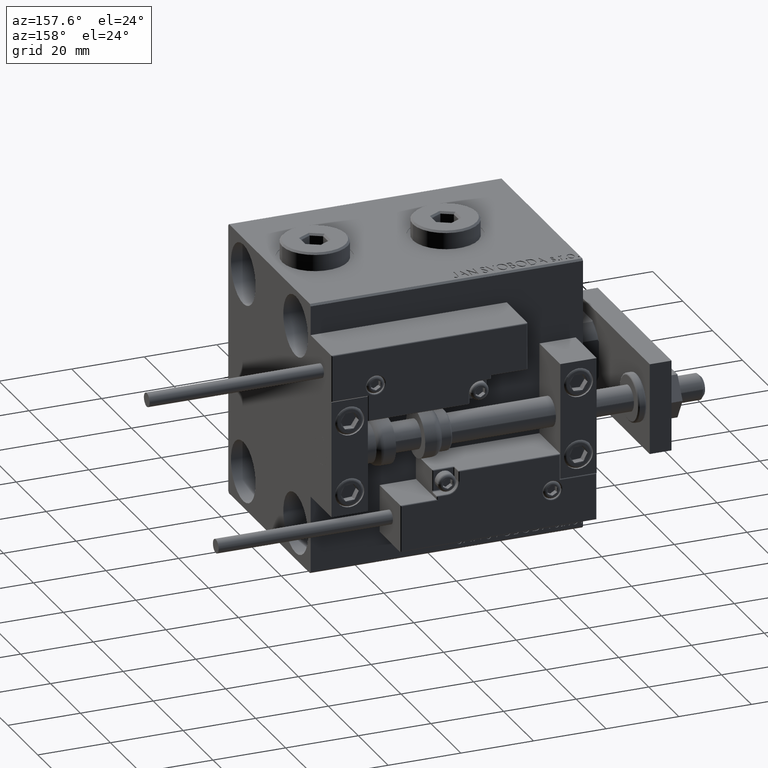
[diagram: clean part render]
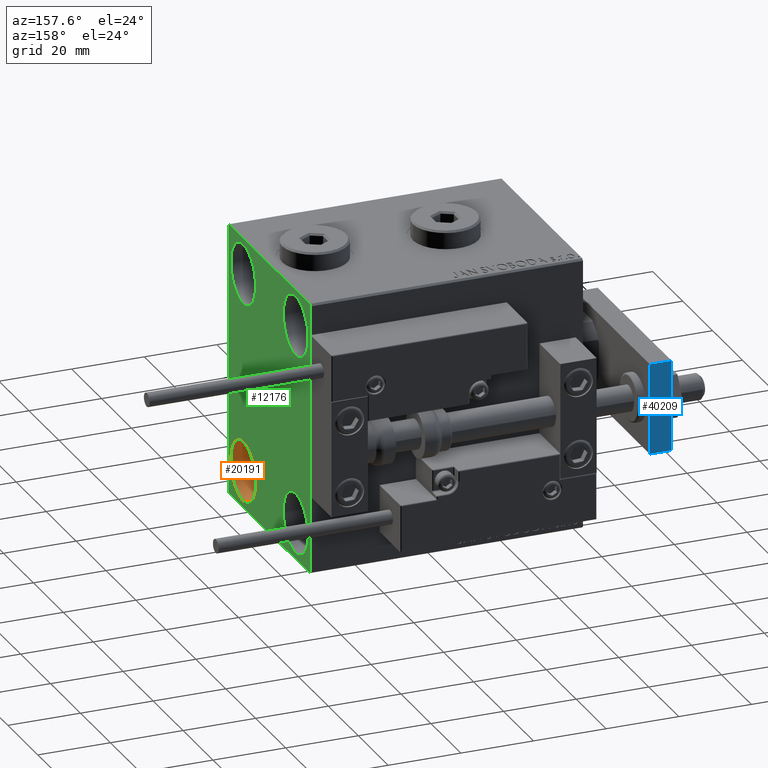
[diagram: same view with three faces highlighted in distinct colors, each labeled with its STEP entity id]
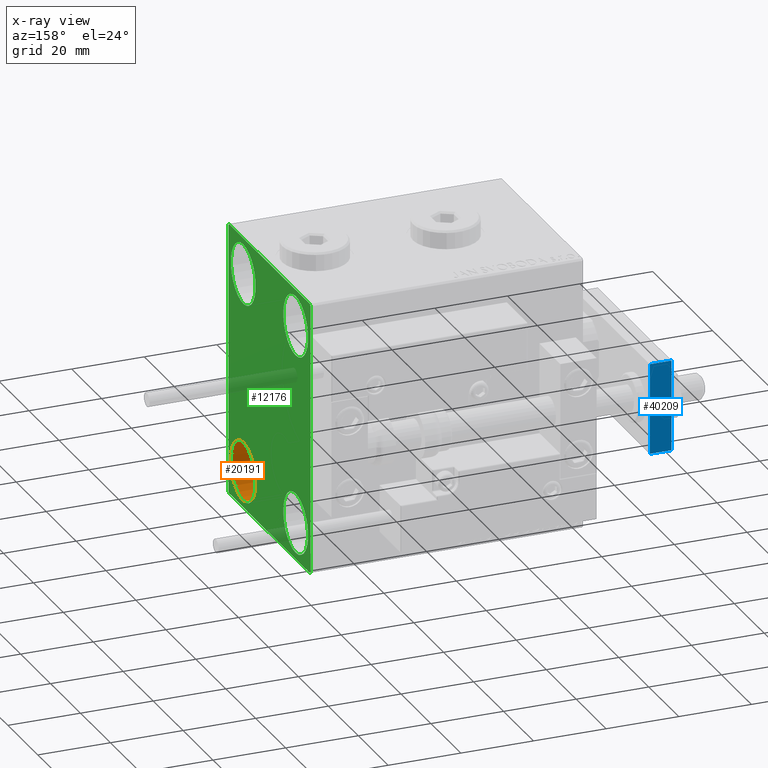
[diagram: x-ray of the same camera — body ghosted, the three highlighted faces saturated]
A machine part, auxiliary view with three faces highlighted in distinct colors.
The next image is the same camera in x-ray (body ghosted, the three faces saturated) — at least one of them is partly hidden behind the body in this view.
Their STEP definitions:

[orange] entity #20191 — the highlighted cylindrical surface (edge-blend (fillet) strip) has radius 8.25 mm, axis along (1, 0, 0).
#812 = CARTESIAN_POINT ( 'NONE',  ( 64.00000000000000000, -17.50000000000000355, -19.25000000000000355 ) ) ;
#3459 = DIRECTION ( 'NONE',  ( -1.000000000000000000, -0.000000000000000000, -0.000000000000000000 ) ) ;
#3655 = DIRECTION ( 'NONE',  ( -1.000000000000000000, -0.000000000000000000, -0.000000000000000000 ) ) ;
#3774 = EDGE_CURVE ( 'NONE', #31535, #14842, #48895, .T. ) ;
#3995 = ORIENTED_EDGE ( 'NONE', *, *, #29127, .F. ) ;
#4964 = DIRECTION ( 'NONE',  ( 1.000000000000000000, -0.000000000000000000, -0.000000000000000000 ) ) ;
#5104 = CARTESIAN_POINT ( 'NONE',  ( 64.00000000000000000, -17.50000000000000355, -19.25000000000000355 ) ) ;
#5338 = AXIS2_PLACEMENT_3D ( 'NONE', #26177, #3459, #10266 ) ;
#10103 = CARTESIAN_POINT ( 'NONE',  ( 64.00000000000000000, -17.50000000000000355, -35.75000000000000711 ) ) ;
#10266 = DIRECTION ( 'NONE',  ( 0.000000000000000000, 0.000000000000000000, 1.000000000000000000 ) ) ;
#11520 = EDGE_CURVE ( 'NONE', #21083, #31535, #49956, .T. ) ;
#14842 = VERTEX_POINT ( 'NONE', #30411 ) ;
#15314 = CIRCLE ( 'NONE', #5338, 8.250000000000000000 ) ;
#15823 = AXIS2_PLACEMENT_3D ( 'NONE', #39615, #3655, #35968 ) ;
#18643 = AXIS2_PLACEMENT_3D ( 'NONE', #37423, #41845, #29583 ) ;
#20191 = ADVANCED_FACE ( 'NONE', ( #25944 ), #25679, .F. ) ;
#21083 = VERTEX_POINT ( 'NONE', #10103 ) ;
#22542 = ORIENTED_EDGE ( 'NONE', *, *, #11520, .T. ) ;
#25323 = CARTESIAN_POINT ( 'NONE',  ( 75.00000000000000000, -17.50000000000000355, -35.75000000000000711 ) ) ;
#25679 = CYLINDRICAL_SURFACE ( 'NONE', #18643, 8.250000000000000000 ) ;
#25944 = FACE_OUTER_BOUND ( 'NONE', #32396, .T. ) ;
#26177 = CARTESIAN_POINT ( 'NONE',  ( 75.00000000000000000, -17.50000000000000355, -27.50000000000000355 ) ) ;
#29127 = EDGE_CURVE ( 'NONE', #39672, #14842, #15314, .T. ) ;
#29583 = DIRECTION ( 'NONE',  ( 0.000000000000000000, 0.000000000000000000, -1.000000000000000000 ) ) ;
#30411 = CARTESIAN_POINT ( 'NONE',  ( 75.00000000000000000, -17.50000000000000355, -19.25000000000000355 ) ) ;
#31535 = VERTEX_POINT ( 'NONE', #812 ) ;
#31595 = EDGE_CURVE ( 'NONE', #21083, #39672, #43813, .T. ) ;
#32396 = EDGE_LOOP ( 'NONE', ( #22542, #38473, #3995, #49179 ) ) ;
#35667 = VECTOR ( 'NONE', #36916, 1000.000000000000000 ) ;
#35968 = DIRECTION ( 'NONE',  ( 0.000000000000000000, 0.000000000000000000, 1.000000000000000000 ) ) ;
#36916 = DIRECTION ( 'NONE',  ( 1.000000000000000000, -0.000000000000000000, -0.000000000000000000 ) ) ;
#37423 = CARTESIAN_POINT ( 'NONE',  ( 64.00000000000000000, -17.50000000000000355, -27.50000000000000355 ) ) ;
#38473 = ORIENTED_EDGE ( 'NONE', *, *, #3774, .T. ) ;
#39615 = CARTESIAN_POINT ( 'NONE',  ( 64.00000000000000000, -17.50000000000000355, -27.50000000000000355 ) ) ;
#39672 = VERTEX_POINT ( 'NONE', #25323 ) ;
#40415 = CARTESIAN_POINT ( 'NONE',  ( 64.00000000000000000, -17.50000000000000355, -35.75000000000000711 ) ) ;
#41845 = DIRECTION ( 'NONE',  ( 1.000000000000000000, -0.000000000000000000, -0.000000000000000000 ) ) ;
#43548 = VECTOR ( 'NONE', #4964, 1000.000000000000000 ) ;
#43813 = LINE ( 'NONE', #40415, #43548 ) ;
#48895 = LINE ( 'NONE', #5104, #35667 ) ;
#49179 = ORIENTED_EDGE ( 'NONE', *, *, #31595, .F. ) ;
#49956 = CIRCLE ( 'NONE', #15823, 8.250000000000000000 ) ;

[blue] entity #40209 — the highlighted planar face has unit normal (0, -1, 0).
#725 = VECTOR ( 'NONE', #36875, 1000.000000000000000 ) ;
#1292 = DIRECTION ( 'NONE',  ( -1.000000000000000000, 0.000000000000000000, 0.000000000000000000 ) ) ;
#1619 = EDGE_CURVE ( 'NONE', #36861, #47057, #16818, .T. ) ;
#2441 = DIRECTION ( 'NONE',  ( -0.000000000000000000, -0.000000000000000000, -1.000000000000000000 ) ) ;
#3684 = ORIENTED_EDGE ( 'NONE', *, *, #15656, .T. ) ;
#7275 = VECTOR ( 'NONE', #9252, 1000.000000000000000 ) ;
#9252 = DIRECTION ( 'NONE',  ( -1.000000000000000000, 0.000000000000000000, 0.000000000000000000 ) ) ;
#15656 = EDGE_CURVE ( 'NONE', #44437, #48534, #44552, .T. ) ;
#16818 = LINE ( 'NONE', #36896, #7275 ) ;
#17687 = CARTESIAN_POINT ( 'NONE',  ( -12.49999999999999822, 55.00000000000000000, 0.000000000000000000 ) ) ;
#18287 = ORIENTED_EDGE ( 'NONE', *, *, #21383, .F. ) ;
#21101 = CARTESIAN_POINT ( 'NONE',  ( 12.50000000000000000, 55.00000000000000000, 0.000000000000000000 ) ) ;
#21383 = EDGE_CURVE ( 'NONE', #47057, #48534, #49346, .T. ) ;
#22389 = ORIENTED_EDGE ( 'NONE', *, *, #1619, .F. ) ;
#24710 = AXIS2_PLACEMENT_3D ( 'NONE', #28333, #41798, #48654 ) ;
#28333 = CARTESIAN_POINT ( 'NONE',  ( 12.50000000000000000, 55.00000000000000000, 6.000000000000000000 ) ) ;
#30737 = ORIENTED_EDGE ( 'NONE', *, *, #44030, .T. ) ;
#33719 = FACE_OUTER_BOUND ( 'NONE', #47468, .T. ) ;
#36617 = CARTESIAN_POINT ( 'NONE',  ( 12.50000000000000000, 55.00000000000000000, 6.000000000000000000 ) ) ;
#36861 = VERTEX_POINT ( 'NONE', #50917 ) ;
#36875 = DIRECTION ( 'NONE',  ( -0.000000000000000000, -0.000000000000000000, -1.000000000000000000 ) ) ;
#36896 = CARTESIAN_POINT ( 'NONE',  ( 12.50000000000000000, 55.00000000000000000, 6.000000000000000000 ) ) ;
#37324 = CARTESIAN_POINT ( 'NONE',  ( 12.50000000000000000, 55.00000000000000000, 0.000000000000000000 ) ) ;
#37880 = CARTESIAN_POINT ( 'NONE',  ( -12.49999999999999822, 55.00000000000000000, 6.000000000000000000 ) ) ;
#38528 = VECTOR ( 'NONE', #2441, 1000.000000000000000 ) ;
#40209 = ADVANCED_FACE ( 'NONE', ( #33719 ), #40832, .F. ) ;
#40832 = PLANE ( 'NONE',  #24710 ) ;
#41798 = DIRECTION ( 'NONE',  ( 0.000000000000000000, -1.000000000000000000, 0.000000000000000000 ) ) ;
#43576 = CARTESIAN_POINT ( 'NONE',  ( -12.49999999999999822, 55.00000000000000000, 6.000000000000000000 ) ) ;
#44030 = EDGE_CURVE ( 'NONE', #36861, #44437, #44432, .T. ) ;
#44432 = LINE ( 'NONE', #36617, #725 ) ;
#44437 = VERTEX_POINT ( 'NONE', #37324 ) ;
#44552 = LINE ( 'NONE', #21101, #47586 ) ;
#47057 = VERTEX_POINT ( 'NONE', #43576 ) ;
#47468 = EDGE_LOOP ( 'NONE', ( #3684, #18287, #22389, #30737 ) ) ;
#47586 = VECTOR ( 'NONE', #1292, 1000.000000000000000 ) ;
#48534 = VERTEX_POINT ( 'NONE', #17687 ) ;
#48654 = DIRECTION ( 'NONE',  ( 0.000000000000000000, -0.000000000000000000, -1.000000000000000000 ) ) ;
#49346 = LINE ( 'NONE', #37880, #38528 ) ;
#50917 = CARTESIAN_POINT ( 'NONE',  ( 12.50000000000000000, 55.00000000000000000, 6.000000000000000000 ) ) ;

[green] entity #12176 — the highlighted planar face has unit normal (1, 0, 0).
#66 = VERTEX_POINT ( 'NONE', #48607 ) ;
#1552 = ORIENTED_EDGE ( 'NONE', *, *, #15413, .T. ) ;
#1753 = LINE ( 'NONE', #9561, #10916 ) ;
#1972 = EDGE_CURVE ( 'NONE', #47249, #14231, #31421, .T. ) ;
#2736 = DIRECTION ( 'NONE',  ( 0.000000000000000000, 0.000000000000000000, 1.000000000000000000 ) ) ;
#2750 = VECTOR ( 'NONE', #6113, 1000.000000000000000 ) ;
#2784 = FACE_BOUND ( 'NONE', #38259, .T. ) ;
#3200 = ORIENTED_EDGE ( 'NONE', *, *, #27310, .T. ) ;
#3459 = DIRECTION ( 'NONE',  ( -1.000000000000000000, -0.000000000000000000, -0.000000000000000000 ) ) ;
#3462 = DIRECTION ( 'NONE',  ( 0.000000000000000000, 1.000000000000000000, 0.000000000000000000 ) ) ;
#4203 = CARTESIAN_POINT ( 'NONE',  ( 75.00000000000000000, 27.50000000000000355, -37.50000000000000000 ) ) ;
#4969 = VECTOR ( 'NONE', #16529, 1000.000000000000114 ) ;
#5254 = AXIS2_PLACEMENT_3D ( 'NONE', #43682, #16046, #50731 ) ;
#5338 = AXIS2_PLACEMENT_3D ( 'NONE', #26177, #3459, #10266 ) ;
#5464 = VERTEX_POINT ( 'NONE', #46786 ) ;
#5764 = ORIENTED_EDGE ( 'NONE', *, *, #14012, .T. ) ;
#5776 = DIRECTION ( 'NONE',  ( -0.000000000000000000, 0.7071067811865474617, 0.7071067811865474617 ) ) ;
#6113 = DIRECTION ( 'NONE',  ( 0.000000000000000000, 0.000000000000000000, -1.000000000000000000 ) ) ;
#6555 = CARTESIAN_POINT ( 'NONE',  ( 75.00000000000000000, 32.25000000000000000, -32.25000000000000000 ) ) ;
#6687 = DIRECTION ( 'NONE',  ( 0.000000000000000000, -1.000000000000000000, -1.261617073437677999E-16 ) ) ;
#6804 = ORIENTED_EDGE ( 'NONE', *, *, #11584, .T. ) ;
#6915 = DIRECTION ( 'NONE',  ( -1.000000000000000000, -0.000000000000000000, -0.000000000000000000 ) ) ;
#7440 = DIRECTION ( 'NONE',  ( 1.000000000000000000, 0.000000000000000000, 0.000000000000000000 ) ) ;
#7533 = EDGE_CURVE ( 'NONE', #45179, #50815, #34656, .T. ) ;
#8585 = ORIENTED_EDGE ( 'NONE', *, *, #45599, .T. ) ;
#8956 = LINE ( 'NONE', #17564, #4969 ) ;
#8975 = VERTEX_POINT ( 'NONE', #44920 ) ;
#9561 = CARTESIAN_POINT ( 'NONE',  ( 75.00000000000000000, 27.49999999999999645, 37.50000000000000711 ) ) ;
#9596 = ORIENTED_EDGE ( 'NONE', *, *, #42677, .T. ) ;
#10078 = CARTESIAN_POINT ( 'NONE',  ( 75.00000000000000000, 17.50000000000000355, 19.25000000000000000 ) ) ;
#10172 = EDGE_CURVE ( 'NONE', #50660, #8975, #8956, .T. ) ;
#10266 = DIRECTION ( 'NONE',  ( 0.000000000000000000, 0.000000000000000000, 1.000000000000000000 ) ) ;
#10916 = VECTOR ( 'NONE', #6687, 1000.000000000000000 ) ;
#10966 = ORIENTED_EDGE ( 'NONE', *, *, #29127, .T. ) ;
#11185 = CARTESIAN_POINT ( 'NONE',  ( 75.00000000000000000, -32.25000000000000000, -32.25000000000000000 ) ) ;
#11436 = AXIS2_PLACEMENT_3D ( 'NONE', #35293, #15223, #35811 ) ;
#11584 = EDGE_CURVE ( 'NONE', #45906, #23524, #12477, .T. ) ;
#11613 = VECTOR ( 'NONE', #50552, 1000.000000000000114 ) ;
#11831 = VECTOR ( 'NONE', #3462, 1000.000000000000000 ) ;
#12024 = CARTESIAN_POINT ( 'NONE',  ( 75.00000000000000000, -27.00000000000001776, 37.50000000000000000 ) ) ;
#12176 = ADVANCED_FACE ( 'NONE', ( #38482, #2784, #47563, #15268, #19185 ), #42904, .T. ) ;
#12477 = CIRCLE ( 'NONE', #19150, 8.249999999999992895 ) ;
#13131 = CIRCLE ( 'NONE', #49753, 8.250000000000000000 ) ;
#13410 = LINE ( 'NONE', #41822, #2750 ) ;
#14012 = EDGE_CURVE ( 'NONE', #18500, #50660, #1753, .T. ) ;
#14218 = CARTESIAN_POINT ( 'NONE',  ( 75.00000000000000000, 17.50000000000000355, 27.49999999999999645 ) ) ;
#14231 = VERTEX_POINT ( 'NONE', #33737 ) ;
#14842 = VERTEX_POINT ( 'NONE', #30411 ) ;
#15223 = DIRECTION ( 'NONE',  ( -1.000000000000000000, -0.000000000000000000, -0.000000000000000000 ) ) ;
#15268 = FACE_BOUND ( 'NONE', #31282, .T. ) ;
#15314 = CIRCLE ( 'NONE', #5338, 8.250000000000000000 ) ;
#15413 = EDGE_CURVE ( 'NONE', #14231, #47249, #48415, .T. ) ;
#16046 = DIRECTION ( 'NONE',  ( -1.000000000000000000, -0.000000000000000000, -0.000000000000000000 ) ) ;
#16161 = DIRECTION ( 'NONE',  ( -1.000000000000000000, -0.000000000000000000, -0.000000000000000000 ) ) ;
#16529 = DIRECTION ( 'NONE',  ( 0.000000000000000000, -0.7071067811865474617, -0.7071067811865474617 ) ) ;
#16610 = EDGE_CURVE ( 'NONE', #50815, #5464, #23531, .T. ) ;
#17548 = EDGE_CURVE ( 'NONE', #8975, #45179, #13410, .T. ) ;
#17564 = CARTESIAN_POINT ( 'NONE',  ( 75.00000000000000000, -32.25000000000000711, 32.25000000000000711 ) ) ;
#17736 = VECTOR ( 'NONE', #43705, 1000.000000000000000 ) ;
#18239 = DIRECTION ( 'NONE',  ( -1.000000000000000000, -0.000000000000000000, -0.000000000000000000 ) ) ;
#18500 = VERTEX_POINT ( 'NONE', #40347 ) ;
#18989 = CIRCLE ( 'NONE', #35610, 8.249999999999992895 ) ;
#19150 = AXIS2_PLACEMENT_3D ( 'NONE', #23456, #16161, #19812 ) ;
#19185 = FACE_OUTER_BOUND ( 'NONE', #29735, .T. ) ;
#19436 = DIRECTION ( 'NONE',  ( 0.000000000000000000, 0.000000000000000000, -1.000000000000000000 ) ) ;
#19770 = ORIENTED_EDGE ( 'NONE', *, *, #10172, .T. ) ;
#19812 = DIRECTION ( 'NONE',  ( 0.000000000000000000, 0.000000000000000000, 1.000000000000000000 ) ) ;
#19958 = CARTESIAN_POINT ( 'NONE',  ( 75.00000000000000000, 17.49999999999999645, -35.75000000000000711 ) ) ;
#19971 = VERTEX_POINT ( 'NONE', #39020 ) ;
#22184 = CARTESIAN_POINT ( 'NONE',  ( 75.00000000000000000, -17.49999999999999645, 19.25000000000000000 ) ) ;
#22265 = EDGE_CURVE ( 'NONE', #14842, #39672, #41048, .T. ) ;
#22716 = ORIENTED_EDGE ( 'NONE', *, *, #46380, .T. ) ;
#23456 = CARTESIAN_POINT ( 'NONE',  ( 75.00000000000000000, 17.50000000000000355, 27.49999999999999645 ) ) ;
#23524 = VERTEX_POINT ( 'NONE', #49335 ) ;
#23531 = LINE ( 'NONE', #39173, #11831 ) ;
#23954 = ORIENTED_EDGE ( 'NONE', *, *, #16610, .T. ) ;
#24060 = DIRECTION ( 'NONE',  ( 0.000000000000000000, 0.000000000000000000, 1.000000000000000000 ) ) ;
#24769 = ORIENTED_EDGE ( 'NONE', *, *, #31008, .T. ) ;
#25323 = CARTESIAN_POINT ( 'NONE',  ( 75.00000000000000000, -17.50000000000000355, -35.75000000000000711 ) ) ;
#26077 = CARTESIAN_POINT ( 'NONE',  ( 75.00000000000000000, -27.00000000000000355, -37.50000000000000000 ) ) ;
#26177 = CARTESIAN_POINT ( 'NONE',  ( 75.00000000000000000, -17.50000000000000355, -27.50000000000000355 ) ) ;
#26311 = ORIENTED_EDGE ( 'NONE', *, *, #1972, .T. ) ;
#26822 = AXIS2_PLACEMENT_3D ( 'NONE', #44131, #40227, #24060 ) ;
#27310 = EDGE_CURVE ( 'NONE', #66, #18500, #34347, .T. ) ;
#29127 = EDGE_CURVE ( 'NONE', #39672, #14842, #15314, .T. ) ;
#29735 = EDGE_LOOP ( 'NONE', ( #5764, #19770, #33319, #44289, #23954, #45054, #22716, #3200 ) ) ;
#30353 = CIRCLE ( 'NONE', #37828, 8.250000000000000000 ) ;
#30411 = CARTESIAN_POINT ( 'NONE',  ( 75.00000000000000000, -17.50000000000000355, -19.25000000000000355 ) ) ;
#30607 = DIRECTION ( 'NONE',  ( 0.000000000000000000, -9.251858538542970348E-17, 1.000000000000000000 ) ) ;
#30697 = CARTESIAN_POINT ( 'NONE',  ( 75.00000000000000000, 17.49999999999999645, -19.25000000000000355 ) ) ;
#31008 = EDGE_CURVE ( 'NONE', #47780, #33324, #30353, .T. ) ;
#31282 = EDGE_LOOP ( 'NONE', ( #10966, #51369 ) ) ;
#31362 = CARTESIAN_POINT ( 'NONE',  ( 75.00000000000000000, -27.50000000000000355, -37.00000000000000000 ) ) ;
#31421 = CIRCLE ( 'NONE', #11436, 8.249999999999992895 ) ;
#33319 = ORIENTED_EDGE ( 'NONE', *, *, #17548, .T. ) ;
#33324 = VERTEX_POINT ( 'NONE', #19958 ) ;
#33737 = CARTESIAN_POINT ( 'NONE',  ( 75.00000000000000000, -17.49999999999999645, 35.74999999999999289 ) ) ;
#34347 = LINE ( 'NONE', #50251, #17736 ) ;
#34411 = EDGE_LOOP ( 'NONE', ( #6804, #9596 ) ) ;
#34656 = LINE ( 'NONE', #11185, #11613 ) ;
#35293 = CARTESIAN_POINT ( 'NONE',  ( 75.00000000000000000, -17.49999999999999645, 27.49999999999999645 ) ) ;
#35582 = CARTESIAN_POINT ( 'NONE',  ( 75.00000000000000000, 0.000000000000000000, 0.000000000000000000 ) ) ;
#35610 = AXIS2_PLACEMENT_3D ( 'NONE', #14218, #6915, #42371 ) ;
#35811 = DIRECTION ( 'NONE',  ( 0.000000000000000000, 0.000000000000000000, 1.000000000000000000 ) ) ;
#37787 = CARTESIAN_POINT ( 'NONE',  ( 75.00000000000000000, 17.49999999999999645, -27.50000000000000355 ) ) ;
#37828 = AXIS2_PLACEMENT_3D ( 'NONE', #50168, #41566, #2736 ) ;
#38259 = EDGE_LOOP ( 'NONE', ( #26311, #1552 ) ) ;
#38482 = FACE_BOUND ( 'NONE', #42257, .T. ) ;
#39020 = CARTESIAN_POINT ( 'NONE',  ( 75.00000000000000000, 27.50000000000000355, -37.00000000000000000 ) ) ;
#39173 = CARTESIAN_POINT ( 'NONE',  ( 75.00000000000000000, -27.50000000000000355, -37.50000000000000000 ) ) ;
#39672 = VERTEX_POINT ( 'NONE', #25323 ) ;
#39905 = LINE ( 'NONE', #4203, #41460 ) ;
#40227 = DIRECTION ( 'NONE',  ( -1.000000000000000000, -0.000000000000000000, -0.000000000000000000 ) ) ;
#40347 = CARTESIAN_POINT ( 'NONE',  ( 75.00000000000000000, 27.00000000000001066, 37.50000000000000711 ) ) ;
#40560 = VECTOR ( 'NONE', #5776, 1000.000000000000114 ) ;
#41048 = CIRCLE ( 'NONE', #5254, 8.250000000000000000 ) ;
#41460 = VECTOR ( 'NONE', #30607, 1000.000000000000000 ) ;
#41566 = DIRECTION ( 'NONE',  ( -1.000000000000000000, -0.000000000000000000, -0.000000000000000000 ) ) ;
#41822 = CARTESIAN_POINT ( 'NONE',  ( 75.00000000000000000, -27.50000000000000355, 37.50000000000000000 ) ) ;
#42257 = EDGE_LOOP ( 'NONE', ( #8585, #24769 ) ) ;
#42268 = LINE ( 'NONE', #6555, #40560 ) ;
#42371 = DIRECTION ( 'NONE',  ( 0.000000000000000000, 0.000000000000000000, 1.000000000000000000 ) ) ;
#42489 = AXIS2_PLACEMENT_3D ( 'NONE', #35582, #7440, #19436 ) ;
#42677 = EDGE_CURVE ( 'NONE', #23524, #45906, #18989, .T. ) ;
#42904 = PLANE ( 'NONE',  #42489 ) ;
#43682 = CARTESIAN_POINT ( 'NONE',  ( 75.00000000000000000, -17.50000000000000355, -27.50000000000000355 ) ) ;
#43705 = DIRECTION ( 'NONE',  ( -0.000000000000000000, -0.7071067811865426878, 0.7071067811865524577 ) ) ;
#44131 = CARTESIAN_POINT ( 'NONE',  ( 75.00000000000000000, -17.49999999999999645, 27.49999999999999645 ) ) ;
#44289 = ORIENTED_EDGE ( 'NONE', *, *, #7533, .T. ) ;
#44600 = EDGE_CURVE ( 'NONE', #5464, #19971, #42268, .T. ) ;
#44920 = CARTESIAN_POINT ( 'NONE',  ( 75.00000000000000000, -27.50000000000000355, 37.00000000000001421 ) ) ;
#45054 = ORIENTED_EDGE ( 'NONE', *, *, #44600, .T. ) ;
#45179 = VERTEX_POINT ( 'NONE', #31362 ) ;
#45599 = EDGE_CURVE ( 'NONE', #33324, #47780, #13131, .T. ) ;
#45906 = VERTEX_POINT ( 'NONE', #10078 ) ;
#46380 = EDGE_CURVE ( 'NONE', #19971, #66, #39905, .T. ) ;
#46786 = CARTESIAN_POINT ( 'NONE',  ( 75.00000000000000000, 27.00000000000000355, -37.50000000000000000 ) ) ;
#47249 = VERTEX_POINT ( 'NONE', #22184 ) ;
#47563 = FACE_BOUND ( 'NONE', #34411, .T. ) ;
#47780 = VERTEX_POINT ( 'NONE', #30697 ) ;
#48415 = CIRCLE ( 'NONE', #26822, 8.249999999999992895 ) ;
#48607 = CARTESIAN_POINT ( 'NONE',  ( 75.00000000000000000, 27.49999999999999645, 37.00000000000001421 ) ) ;
#49335 = CARTESIAN_POINT ( 'NONE',  ( 75.00000000000000000, 17.50000000000000355, 35.74999999999999289 ) ) ;
#49753 = AXIS2_PLACEMENT_3D ( 'NONE', #37787, #18239, #50030 ) ;
#50030 = DIRECTION ( 'NONE',  ( 0.000000000000000000, 0.000000000000000000, 1.000000000000000000 ) ) ;
#50168 = CARTESIAN_POINT ( 'NONE',  ( 75.00000000000000000, 17.49999999999999645, -27.50000000000000355 ) ) ;
#50251 = CARTESIAN_POINT ( 'NONE',  ( 75.00000000000000000, 32.25000000000019185, 32.24999999999975131 ) ) ;
#50552 = DIRECTION ( 'NONE',  ( -0.000000000000000000, 0.7071067811865474617, -0.7071067811865474617 ) ) ;
#50660 = VERTEX_POINT ( 'NONE', #12024 ) ;
#50731 = DIRECTION ( 'NONE',  ( 0.000000000000000000, 0.000000000000000000, 1.000000000000000000 ) ) ;
#50815 = VERTEX_POINT ( 'NONE', #26077 ) ;
#51369 = ORIENTED_EDGE ( 'NONE', *, *, #22265, .T. ) ;